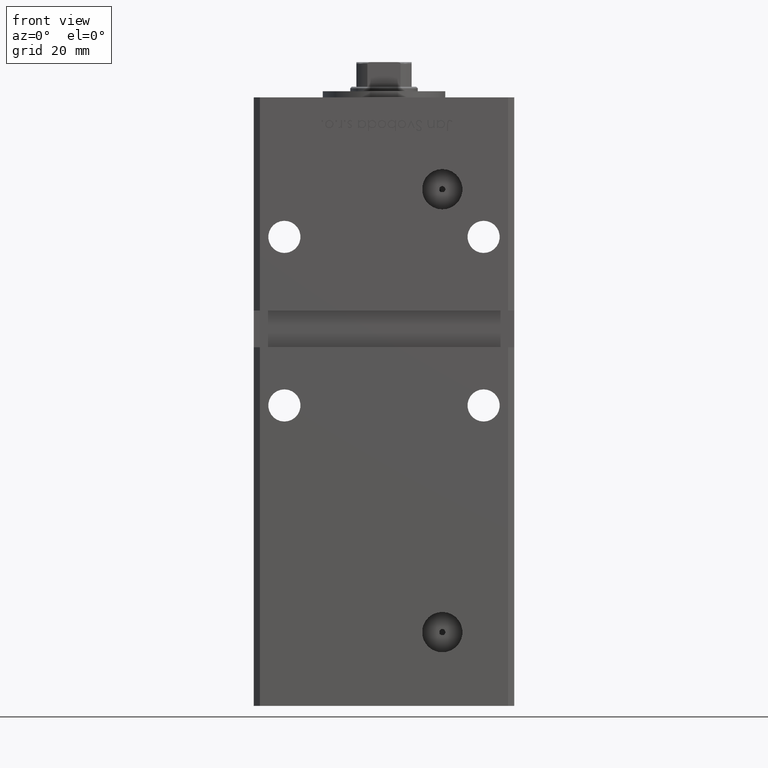
[diagram: clean part render]
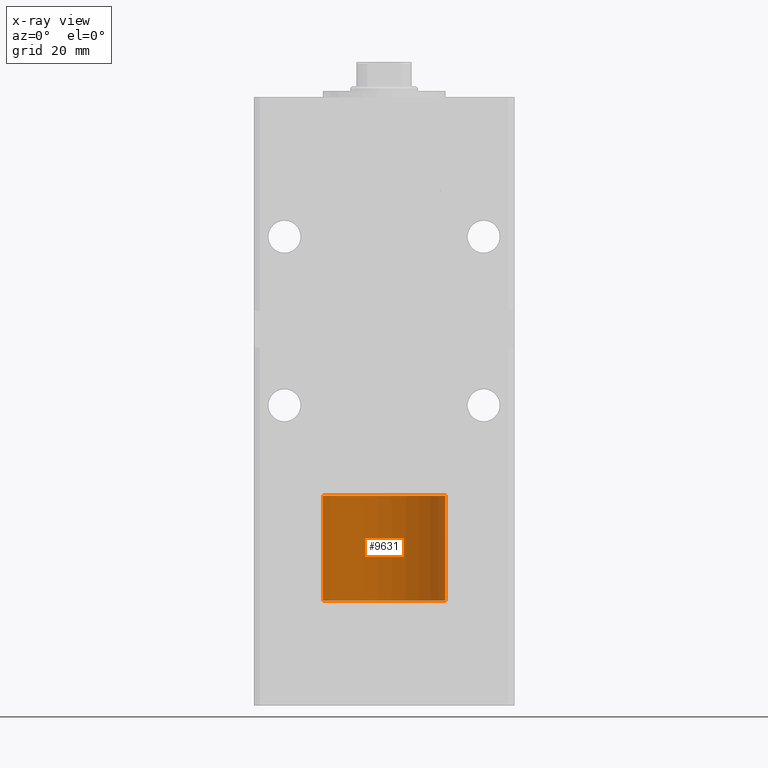
[diagram: x-ray — body ghosted, one internal face saturated and labeled with its STEP entity id]
A machine part, front view, then the same camera in x-ray: the body is ghosted and one INTERNAL B-rep face — a face not visible from any outside direction — is saturated and labeled: STEP entity #9631.
In plain terms, the highlighted cylindrical surface (partial cylindrical patch) has radius 20 mm, axis along (-0, -0, -1).
Its self-contained STEP definition (entity closure, byte-faithful):
#1971 = FACE_OUTER_BOUND ( 'NONE', #41768, .T. ) ;
#4620 = VECTOR ( 'NONE', #22078, 1000.000000000000000 ) ;
#5440 = CARTESIAN_POINT ( 'NONE',  ( 0.000000000000000000, 0.000000000000000000, 0.000000000000000000 ) ) ;
#6997 = DIRECTION ( 'NONE',  ( -0.000000000000000000, -0.000000000000000000, -1.000000000000000000 ) ) ;
#7522 = DIRECTION ( 'NONE',  ( 1.000000000000000000, 0.000000000000000000, 0.000000000000000000 ) ) ;
#8476 = ORIENTED_EDGE ( 'NONE', *, *, #27668, .T. ) ;
#9161 = CARTESIAN_POINT ( 'NONE',  ( 20.00000000000000000, 2.449293598294706513E-15, 34.25000000000000000 ) ) ;
#9631 = ADVANCED_FACE ( 'NONE', ( #1971 ), #27261, .T. ) ;
#11307 = CARTESIAN_POINT ( 'NONE',  ( 20.00000000000000000, 2.449293598294706513E-15, 34.25000000000000000 ) ) ;
#11554 = ORIENTED_EDGE ( 'NONE', *, *, #46647, .F. ) ;
#12560 = CIRCLE ( 'NONE', #31437, 20.00000000000000000 ) ;
#13793 = DIRECTION ( 'NONE',  ( 1.000000000000000000, 0.000000000000000000, 0.000000000000000000 ) ) ;
#14213 = VERTEX_POINT ( 'NONE', #26834 ) ;
#18408 = CARTESIAN_POINT ( 'NONE',  ( 0.000000000000000000, 0.000000000000000000, 34.25000000000000000 ) ) ;
#18440 = ORIENTED_EDGE ( 'NONE', *, *, #29668, .T. ) ;
#18703 = VERTEX_POINT ( 'NONE', #53076 ) ;
#19160 = VERTEX_POINT ( 'NONE', #9161 ) ;
#19192 = DIRECTION ( 'NONE',  ( -1.000000000000000000, 0.000000000000000000, 0.000000000000000000 ) ) ;
#21523 = CIRCLE ( 'NONE', #50724, 20.00000000000000000 ) ;
#22078 = DIRECTION ( 'NONE',  ( -0.000000000000000000, -0.000000000000000000, -1.000000000000000000 ) ) ;
#23401 = DIRECTION ( 'NONE',  ( 0.000000000000000000, 0.000000000000000000, 1.000000000000000000 ) ) ;
#26147 = AXIS2_PLACEMENT_3D ( 'NONE', #18408, #34805, #19192 ) ;
#26834 = CARTESIAN_POINT ( 'NONE',  ( -20.00000000000000000, 0.000000000000000000, 34.25000000000000000 ) ) ;
#26893 = VERTEX_POINT ( 'NONE', #44672 ) ;
#27261 = CYLINDRICAL_SURFACE ( 'NONE', #26147, 20.00000000000000000 ) ;
#27446 = CARTESIAN_POINT ( 'NONE',  ( 0.000000000000000000, 0.000000000000000000, 34.25000000000000000 ) ) ;
#27668 = EDGE_CURVE ( 'NONE', #18703, #26893, #21523, .T. ) ;
#29668 = EDGE_CURVE ( 'NONE', #19160, #18703, #44106, .T. ) ;
#30923 = LINE ( 'NONE', #43038, #4620 ) ;
#31437 = AXIS2_PLACEMENT_3D ( 'NONE', #27446, #23401, #7522 ) ;
#34805 = DIRECTION ( 'NONE',  ( -0.000000000000000000, -0.000000000000000000, -1.000000000000000000 ) ) ;
#37047 = VECTOR ( 'NONE', #6997, 1000.000000000000000 ) ;
#38660 = ORIENTED_EDGE ( 'NONE', *, *, #50788, .F. ) ;
#41768 = EDGE_LOOP ( 'NONE', ( #38660, #18440, #8476, #11554 ) ) ;
#43038 = CARTESIAN_POINT ( 'NONE',  ( -20.00000000000000000, 0.000000000000000000, 34.25000000000000000 ) ) ;
#43099 = DIRECTION ( 'NONE',  ( 0.000000000000000000, 0.000000000000000000, 1.000000000000000000 ) ) ;
#44106 = LINE ( 'NONE', #11307, #37047 ) ;
#44672 = CARTESIAN_POINT ( 'NONE',  ( -20.00000000000000000, 0.000000000000000000, 0.000000000000000000 ) ) ;
#46647 = EDGE_CURVE ( 'NONE', #14213, #26893, #30923, .T. ) ;
#50724 = AXIS2_PLACEMENT_3D ( 'NONE', #5440, #43099, #13793 ) ;
#50788 = EDGE_CURVE ( 'NONE', #19160, #14213, #12560, .T. ) ;
#53076 = CARTESIAN_POINT ( 'NONE',  ( 20.00000000000000000, 2.449293598294706513E-15, 0.000000000000000000 ) ) ;